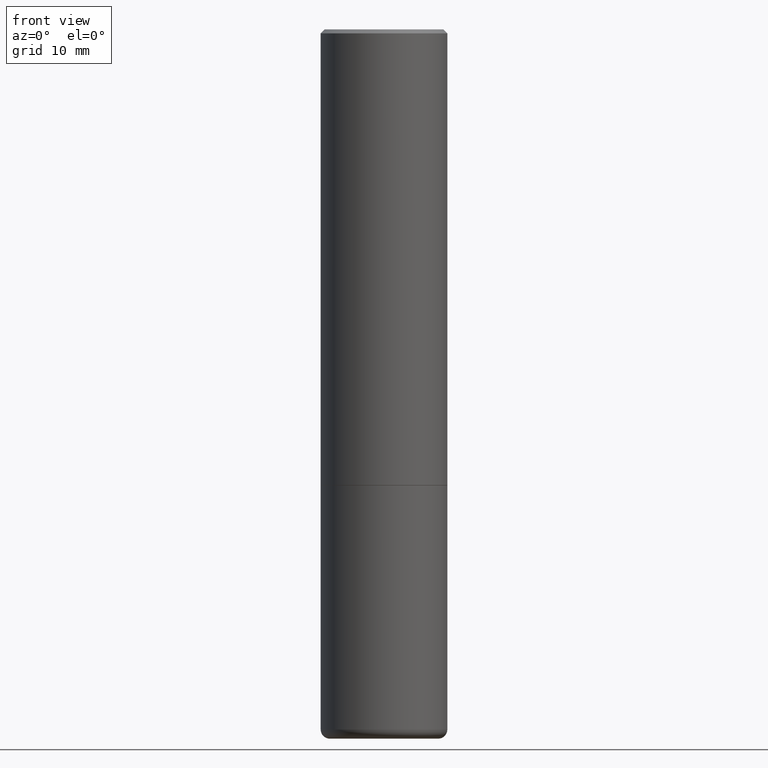
[diagram: clean part render]
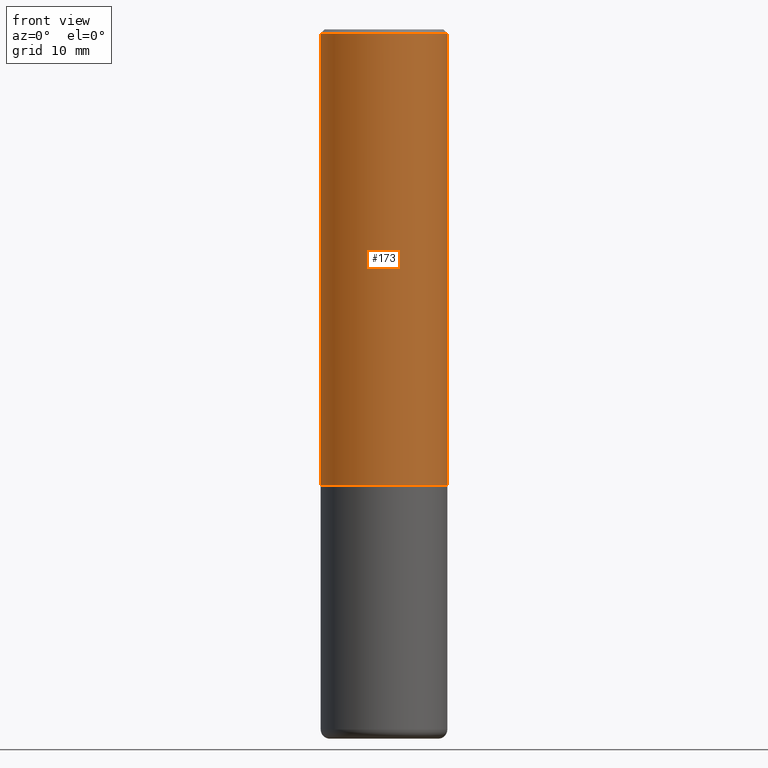
[diagram: same view with one face highlighted and labeled with its STEP entity id]
A machine part, front view. The second image highlights one B-rep face of the part: STEP entity #173.
In plain terms, the highlighted cylindrical surface (partial cylindrical patch) has radius 7.9375 mm, axis along (-0, 0, 1).
Its self-contained STEP definition (entity closure, byte-faithful):
#7 = VERTEX_POINT ( 'NONE', #430 ) ;
#26 = DIRECTION ( 'NONE',  ( -2.445468806185136597E-29, 3.491481338843145583E-15, 1.000000000000000000 ) ) ;
#33 = VERTEX_POINT ( 'NONE', #289 ) ;
#36 = DIRECTION ( 'NONE',  ( -2.445468806185136877E-29, 3.491481338843145188E-15, 1.000000000000000000 ) ) ;
#50 = CIRCLE ( 'NONE', #326, 0.3125000000000000000 ) ;
#64 = CARTESIAN_POINT ( 'NONE',  ( -0.3125000000000000000, -1.740639529667232739E-15, -2.248999999999999222 ) ) ;
#104 = CARTESIAN_POINT ( 'NONE',  ( 0.3124999999999998890, -2.182175836776957558E-15, 1.523805242436229235E-29 ) ) ;
#116 = EDGE_CURVE ( 'NONE', #7, #421, #426, .T. ) ;
#120 = CARTESIAN_POINT ( 'NONE',  ( 5.499859345110370619E-29, -7.852341531058232286E-15, -2.248999999999999222 ) ) ;
#129 = DIRECTION ( 'NONE',  ( -2.445468806185136597E-29, 3.491481338843145583E-15, 1.000000000000000000 ) ) ;
#139 = EDGE_CURVE ( 'NONE', #376, #33, #50, .T. ) ;
#145 = VECTOR ( 'NONE', #209, 39.37007874015748143 ) ;
#152 = CYLINDRICAL_SURFACE ( 'NONE', #341, 0.3124999999999998890 ) ;
#167 = CARTESIAN_POINT ( 'NONE',  ( 0.3124999999999998335, -2.213735251080465334E-15, -0.02000000000000001776 ) ) ;
#173 = ADVANCED_FACE ( 'NONE', ( #331 ), #152, .T. ) ;
#188 = DIRECTION ( 'NONE',  ( 1.000000000000000000, -6.982962677686266711E-15, 0.000000000000000000 ) ) ;
#189 = EDGE_LOOP ( 'NONE', ( #307, #236, #265, #304 ) ) ;
#192 = CARTESIAN_POINT ( 'NONE',  ( 4.890937612370276662E-31, -6.982962677686296539E-17, -0.02000000000000001776 ) ) ;
#209 = DIRECTION ( 'NONE',  ( -2.445468806185136877E-29, 3.491481338843145188E-15, 1.000000000000000000 ) ) ;
#228 = DIRECTION ( 'NONE',  ( -2.445468806185136597E-29, 3.491481338843145583E-15, 1.000000000000000000 ) ) ;
#236 = ORIENTED_EDGE ( 'NONE', *, *, #139, .T. ) ;
#237 = EDGE_CURVE ( 'NONE', #33, #421, #442, .T. ) ;
#265 = ORIENTED_EDGE ( 'NONE', *, *, #237, .T. ) ;
#273 = VECTOR ( 'NONE', #36, 39.37007874015748143 ) ;
#280 = AXIS2_PLACEMENT_3D ( 'NONE', #192, #228, #188 ) ;
#289 = CARTESIAN_POINT ( 'NONE',  ( 0.3125000000000000000, -1.003451736783519063E-14, -2.248999999999999222 ) ) ;
#304 = ORIENTED_EDGE ( 'NONE', *, *, #116, .F. ) ;
#307 = ORIENTED_EDGE ( 'NONE', *, *, #404, .F. ) ;
#326 = AXIS2_PLACEMENT_3D ( 'NONE', #120, #129, #359 ) ;
#331 = FACE_OUTER_BOUND ( 'NONE', #189, .T. ) ;
#341 = AXIS2_PLACEMENT_3D ( 'NONE', #405, #26, #434 ) ;
#359 = DIRECTION ( 'NONE',  ( 1.000000000000000000, -6.982962677686269077E-15, 0.000000000000000000 ) ) ;
#376 = VERTEX_POINT ( 'NONE', #64 ) ;
#380 = LINE ( 'NONE', #414, #273 ) ;
#404 = EDGE_CURVE ( 'NONE', #376, #7, #380, .T. ) ;
#405 = CARTESIAN_POINT ( 'NONE',  ( 0.000000000000000000, 0.000000000000000000, 0.000000000000000000 ) ) ;
#414 = CARTESIAN_POINT ( 'NONE',  ( -0.3124999999999998890, 2.220446049250312292E-15, -1.537167215704657391E-29 ) ) ;
#421 = VERTEX_POINT ( 'NONE', #167 ) ;
#426 = CIRCLE ( 'NONE', #280, 0.3124999999999998335 ) ;
#430 = CARTESIAN_POINT ( 'NONE',  ( -0.3124999999999998335, 2.112346210000093866E-15, -0.02000000000000001776 ) ) ;
#434 = DIRECTION ( 'NONE',  ( 1.000000000000000000, -6.982962677686266711E-15, 4.876176775795935232E-29 ) ) ;
#442 = LINE ( 'NONE', #104, #145 ) ;